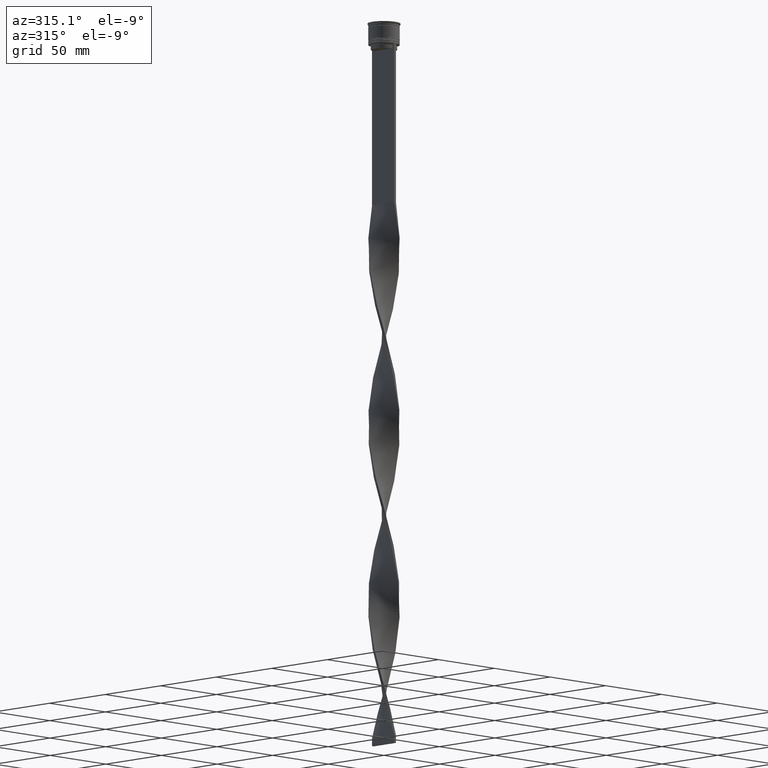
[diagram: clean part render]
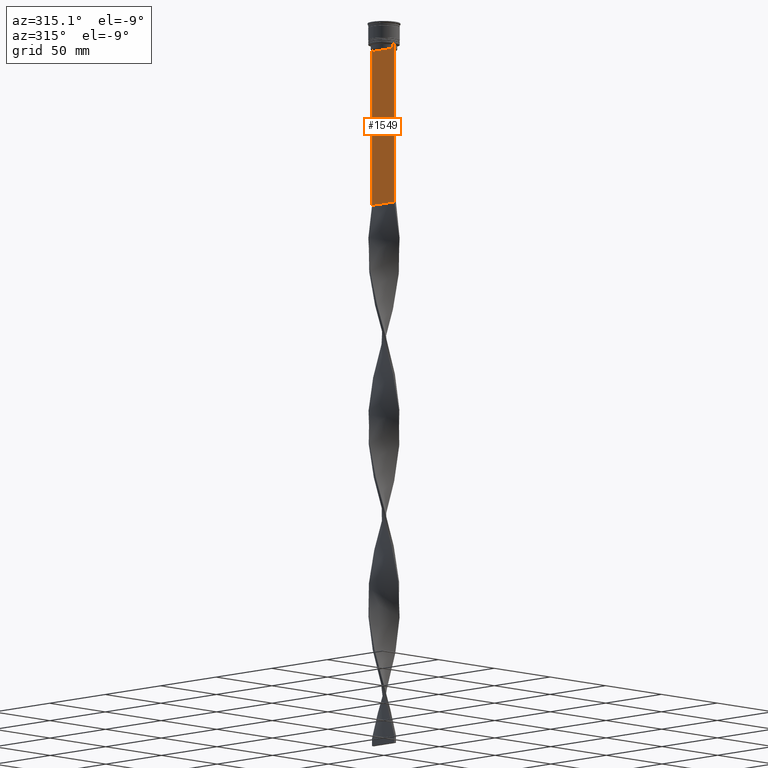
[diagram: same view with one face highlighted and labeled with its STEP entity id]
A machine part, auxiliary view. The second image highlights one B-rep face of the part: STEP entity #1549.
In plain terms, the highlighted planar face has unit normal (-1, 0, 0).
Its self-contained STEP definition (entity closure, byte-faithful):
#49 = VERTEX_POINT ( 'NONE', #2505 ) ;
#216 = DIRECTION ( 'NONE',  ( 0.000000000000000000, -1.000000000000000000, 0.000000000000000000 ) ) ;
#220 = LINE ( 'NONE', #3044, #1057 ) ;
#228 = DIRECTION ( 'NONE',  ( 0.000000000000000000, 0.000000000000000000, -1.000000000000000000 ) ) ;
#249 = VERTEX_POINT ( 'NONE', #684 ) ;
#250 = VECTOR ( 'NONE', #555, 1000.000000000000000 ) ;
#338 = VECTOR ( 'NONE', #3261, 1000.000000000000000 ) ;
#392 = EDGE_CURVE ( 'NONE', #427, #2621, #2995, .T. ) ;
#400 = ORIENTED_EDGE ( 'NONE', *, *, #652, .F. ) ;
#418 = VECTOR ( 'NONE', #1612, 1000.000000000000000 ) ;
#427 = VERTEX_POINT ( 'NONE', #721 ) ;
#482 = ORIENTED_EDGE ( 'NONE', *, *, #3562, .F. ) ;
#487 = AXIS2_PLACEMENT_3D ( 'NONE', #4145, #4169, #1428 ) ;
#511 = EDGE_CURVE ( 'NONE', #4030, #1810, #3218, .T. ) ;
#549 = LINE ( 'NONE', #1879, #338 ) ;
#555 = DIRECTION ( 'NONE',  ( 0.000000000000000000, 1.000000000000000000, 0.000000000000000000 ) ) ;
#587 = CARTESIAN_POINT ( 'NONE',  ( -0.7499999999999997780, -10.00000000000000533, -14.00000000000000178 ) ) ;
#610 = CARTESIAN_POINT ( 'NONE',  ( -0.7499999999999997780, -10.00000000000000533, -14.00000000000000178 ) ) ;
#652 = EDGE_CURVE ( 'NONE', #249, #4030, #549, .T. ) ;
#684 = CARTESIAN_POINT ( 'NONE',  ( -0.7499999999999997780, 8.366450860430608927, -14.50000000000000000 ) ) ;
#721 = CARTESIAN_POINT ( 'NONE',  ( -0.7499999999999997780, 9.999999999999998224, -14.00000000000000178 ) ) ;
#801 = VERTEX_POINT ( 'NONE', #3131 ) ;
#808 = ORIENTED_EDGE ( 'NONE', *, *, #4109, .F. ) ;
#846 = VECTOR ( 'NONE', #3705, 1000.000000000000000 ) ;
#892 = EDGE_CURVE ( 'NONE', #2813, #4152, #2285, .T. ) ;
#905 = DIRECTION ( 'NONE',  ( 0.000000000000000000, -1.000000000000000000, 0.000000000000000000 ) ) ;
#907 = CARTESIAN_POINT ( 'NONE',  ( -0.7499999999999997780, 8.533766897779926808, -14.33335221373273782 ) ) ;
#934 = ORIENTED_EDGE ( 'NONE', *, *, #3552, .F. ) ;
#1001 = CARTESIAN_POINT ( 'NONE',  ( -0.7499999999999997780, -8.868342573446296839, -14.00000000000000178 ) ) ;
#1009 = EDGE_CURVE ( 'NONE', #427, #3741, #2332, .T. ) ;
#1023 = CARTESIAN_POINT ( 'NONE',  ( -0.7499999999999997780, -10.00000000000000533, -14.00000000000000178 ) ) ;
#1057 = VECTOR ( 'NONE', #2682, 1000.000000000000000 ) ;
#1100 = B_SPLINE_CURVE_WITH_KNOTS ( 'NONE', 3,
 ( #1990, #2662, #3704, #1001 ),
 .UNSPECIFIED., .F., .F.,
 ( 4, 4 ),
 ( 0.03866293624047253963, 0.03937282246709321309 ),
 .UNSPECIFIED. ) ;
#1121 = VERTEX_POINT ( 'NONE', #4347 ) ;
#1257 = CARTESIAN_POINT ( 'NONE',  ( -0.7499999999999997780, 9.871550030263740894, -14.00000000000000178 ) ) ;
#1330 = VECTOR ( 'NONE', #905, 1000.000000000000000 ) ;
#1383 = ORIENTED_EDGE ( 'NONE', *, *, #1688, .F. ) ;
#1428 = DIRECTION ( 'NONE',  ( 0.000000000000000000, 0.000000000000000000, 1.000000000000000000 ) ) ;
#1506 = ORIENTED_EDGE ( 'NONE', *, *, #1572, .F. ) ;
#1530 = B_SPLINE_CURVE_WITH_KNOTS ( 'NONE', 3,
 ( #2217, #2873, #907, #3978 ),
 .UNSPECIFIED., .F., .F.,
 ( 4, 4 ),
 ( 0.01512225952876174867, 0.01583070519299695222 ),
 .UNSPECIFIED. ) ;
#1549 = ADVANCED_FACE ( 'NONE', ( #2768 ), #2456, .T. ) ;
#1551 = CARTESIAN_POINT ( 'NONE',  ( -0.7499999999999997780, 8.400000000000003908, -17.00000000000000000 ) ) ;
#1572 = EDGE_CURVE ( 'NONE', #1121, #249, #1530, .T. ) ;
#1595 = EDGE_LOOP ( 'NONE', ( #1506, #4279, #3609, #3794, #934, #3892, #808, #1383, #2421, #482, #3417, #400 ) ) ;
#1612 = DIRECTION ( 'NONE',  ( 0.000000000000000000, -1.000000000000000000, 0.000000000000000000 ) ) ;
#1688 = EDGE_CURVE ( 'NONE', #801, #2472, #2287, .T. ) ;
#1810 = VERTEX_POINT ( 'NONE', #3938 ) ;
#1879 = CARTESIAN_POINT ( 'NONE',  ( -0.7499999999999997780, 8.366450860430608927, 0.000000000000000000 ) ) ;
#1990 = CARTESIAN_POINT ( 'NONE',  ( -0.7499999999999997780, -8.366450860430608927, -14.50000000000000000 ) ) ;
#2217 = CARTESIAN_POINT ( 'NONE',  ( -0.7499999999999997780, 8.868342573446296839, -14.00000000000000178 ) ) ;
#2285 = LINE ( 'NONE', #3319, #2982 ) ;
#2287 = LINE ( 'NONE', #587, #418 ) ;
#2332 = LINE ( 'NONE', #610, #846 ) ;
#2421 = ORIENTED_EDGE ( 'NONE', *, *, #3923, .F. ) ;
#2456 = PLANE ( 'NONE',  #487 ) ;
#2472 = VERTEX_POINT ( 'NONE', #2834 ) ;
#2505 = CARTESIAN_POINT ( 'NONE',  ( -0.7499999999999997780, -8.366450860430608927, -14.50000000000000000 ) ) ;
#2611 = CARTESIAN_POINT ( 'NONE',  ( -0.7499999999999997780, -10.00000000000000533, -116.0000000000000000 ) ) ;
#2621 = VERTEX_POINT ( 'NONE', #3581 ) ;
#2628 = VECTOR ( 'NONE', #216, 1000.000000000000000 ) ;
#2662 = CARTESIAN_POINT ( 'NONE',  ( -0.7499999999999997780, -8.533766903463440912, -14.33335220807192201 ) ) ;
#2682 = DIRECTION ( 'NONE',  ( -0.000000000000000000, -0.000000000000000000, 1.000000000000000000 ) ) ;
#2711 = VECTOR ( 'NONE', #4033, 1000.000000000000000 ) ;
#2768 = FACE_OUTER_BOUND ( 'NONE', #1595, .T. ) ;
#2800 = CARTESIAN_POINT ( 'NONE',  ( -0.7499999999999998890, -10.00000000000000533, -116.0000000000000000 ) ) ;
#2813 = VERTEX_POINT ( 'NONE', #3433 ) ;
#2834 = CARTESIAN_POINT ( 'NONE',  ( -0.7499999999999997780, -9.871550030263740894, -14.00000000000000178 ) ) ;
#2873 = CARTESIAN_POINT ( 'NONE',  ( -0.7499999999999997780, 8.701063075415252257, -14.16668448247791723 ) ) ;
#2933 = CARTESIAN_POINT ( 'NONE',  ( -0.7499999999999997780, -10.00000000000000533, -14.00000000000000178 ) ) ;
#2982 = VECTOR ( 'NONE', #228, 1000.000000000000000 ) ;
#2995 = LINE ( 'NONE', #4413, #2711 ) ;
#3044 = CARTESIAN_POINT ( 'NONE',  ( -0.7499999999999997780, -8.366450860430608927, 0.000000000000000000 ) ) ;
#3131 = CARTESIAN_POINT ( 'NONE',  ( -0.7499999999999997780, -8.868342573446296839, -14.00000000000000178 ) ) ;
#3218 = LINE ( 'NONE', #1551, #2628 ) ;
#3261 = DIRECTION ( 'NONE',  ( 0.000000000000000000, 0.000000000000000000, -1.000000000000000000 ) ) ;
#3273 = LINE ( 'NONE', #2933, #1330 ) ;
#3319 = CARTESIAN_POINT ( 'NONE',  ( -0.7499999999999997780, -10.00000000000000533, 6.056171120131581098 ) ) ;
#3386 = LINE ( 'NONE', #1023, #4261 ) ;
#3408 = DIRECTION ( 'NONE',  ( 0.000000000000000000, -1.000000000000000000, 0.000000000000000000 ) ) ;
#3417 = ORIENTED_EDGE ( 'NONE', *, *, #511, .F. ) ;
#3433 = CARTESIAN_POINT ( 'NONE',  ( -0.7499999999999997780, -10.00000000000000533, -14.00000000000000178 ) ) ;
#3552 = EDGE_CURVE ( 'NONE', #4152, #2621, #4014, .T. ) ;
#3562 = EDGE_CURVE ( 'NONE', #1810, #49, #220, .T. ) ;
#3581 = CARTESIAN_POINT ( 'NONE',  ( -0.7499999999999997780, 9.999999999999998224, -116.0000000000000000 ) ) ;
#3609 = ORIENTED_EDGE ( 'NONE', *, *, #1009, .F. ) ;
#3669 = EDGE_CURVE ( 'NONE', #3741, #1121, #3273, .T. ) ;
#3704 = CARTESIAN_POINT ( 'NONE',  ( -0.7499999999999997780, -8.701063080777123204, -14.16668447713511547 ) ) ;
#3705 = DIRECTION ( 'NONE',  ( 0.000000000000000000, -1.000000000000000000, 0.000000000000000000 ) ) ;
#3741 = VERTEX_POINT ( 'NONE', #1257 ) ;
#3794 = ORIENTED_EDGE ( 'NONE', *, *, #392, .T. ) ;
#3892 = ORIENTED_EDGE ( 'NONE', *, *, #892, .F. ) ;
#3923 = EDGE_CURVE ( 'NONE', #49, #801, #1100, .T. ) ;
#3938 = CARTESIAN_POINT ( 'NONE',  ( -0.7499999999999997780, -8.366450860430608927, -17.00000000000000000 ) ) ;
#3978 = CARTESIAN_POINT ( 'NONE',  ( -0.7499999999999997780, 8.366450860430608927, -14.50000000000000000 ) ) ;
#4014 = LINE ( 'NONE', #2611, #250 ) ;
#4030 = VERTEX_POINT ( 'NONE', #4133 ) ;
#4033 = DIRECTION ( 'NONE',  ( 0.000000000000000000, 0.000000000000000000, -1.000000000000000000 ) ) ;
#4109 = EDGE_CURVE ( 'NONE', #2472, #2813, #3386, .T. ) ;
#4133 = CARTESIAN_POINT ( 'NONE',  ( -0.7499999999999997780, 8.366450860430608927, -17.00000000000000000 ) ) ;
#4145 = CARTESIAN_POINT ( 'NONE',  ( -0.7499999999999997780, -10.00000000000000533, 6.056171120131581098 ) ) ;
#4152 = VERTEX_POINT ( 'NONE', #2800 ) ;
#4169 = DIRECTION ( 'NONE',  ( -1.000000000000000000, 0.000000000000000000, 0.000000000000000000 ) ) ;
#4261 = VECTOR ( 'NONE', #3408, 1000.000000000000000 ) ;
#4279 = ORIENTED_EDGE ( 'NONE', *, *, #3669, .F. ) ;
#4347 = CARTESIAN_POINT ( 'NONE',  ( -0.7499999999999997780, 8.868342573446296839, -14.00000000000000178 ) ) ;
#4413 = CARTESIAN_POINT ( 'NONE',  ( -0.7499999999999997780, 9.999999999999998224, 6.056171120131581098 ) ) ;